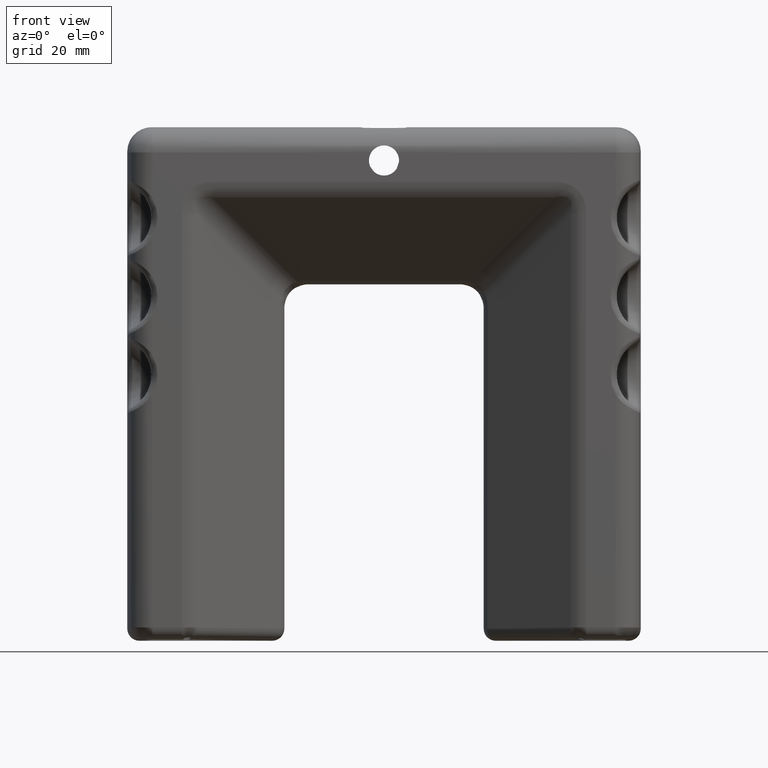
[diagram: clean part render]
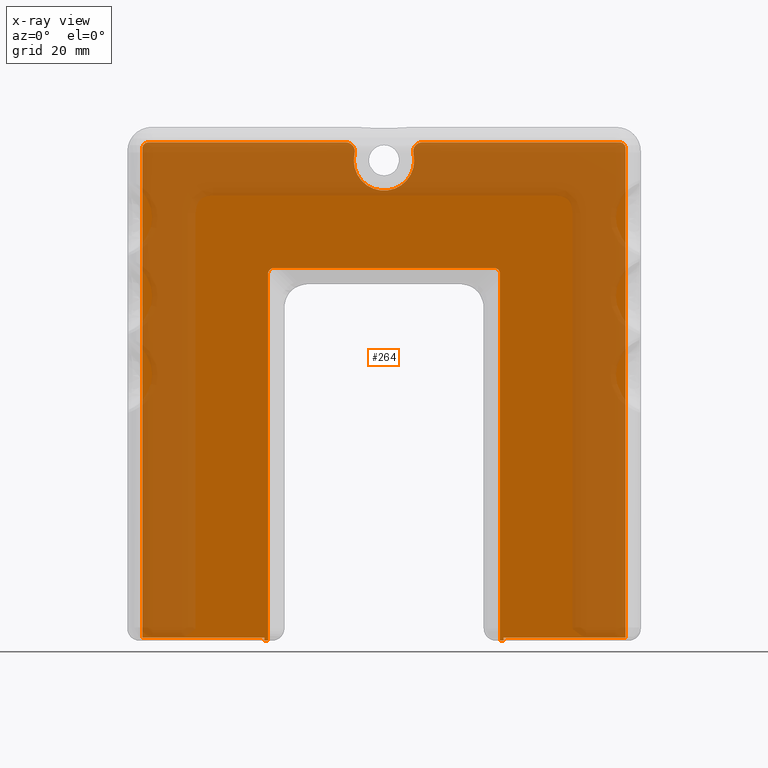
[diagram: x-ray — body ghosted, one internal face saturated and labeled with its STEP entity id]
A machine part, front view, then the same camera in x-ray: the body is ghosted and one INTERNAL B-rep face — a face not visible from any outside direction — is saturated and labeled: STEP entity #264.
In plain terms, the highlighted planar face has unit normal (0, 1, 0).
Its self-contained STEP definition (entity closure, byte-faithful):
#264=ADVANCED_FACE('',(#497),#496,.T.);
#496=PLANE('',#2439);
#497=FACE_OUTER_BOUND('',#2440,.T.);
#2436=CARTESIAN_POINT('',(-4.79999999999E+001,-1.00000000000E+000,3.17491272469E+001));
#2437=DIRECTION('',(-0.00000000000E+000,1.00000000000E+000,0.00000000000E+000));
#2438=DIRECTION('',(1.00000000000E+000,0.00000000000E+000,0.00000000000E+000));
#2439=AXIS2_PLACEMENT_3D('',#2436,#2437,#2438);
#2440=EDGE_LOOP('',(#7975,#7976,#7977,#7978,#7979,#7980,#7981,#7982,#7983,#7984,#7985,#7986,#7987,#7988,#7989,#7990,#7991,#7992,#7993,#7994));
#7975=ORIENTED_EDGE('',*,*,#8967,.T.);
#7976=ORIENTED_EDGE('',*,*,#8957,.F.);
#7977=ORIENTED_EDGE('',*,*,#8961,.F.);
#7978=ORIENTED_EDGE('',*,*,#8968,.T.);
#7979=ORIENTED_EDGE('',*,*,#8969,.T.);
#7980=ORIENTED_EDGE('',*,*,#8970,.T.);
#7981=ORIENTED_EDGE('',*,*,#8965,.F.);
#7982=ORIENTED_EDGE('',*,*,#8953,.F.);
#7983=ORIENTED_EDGE('',*,*,#8971,.T.);
#7984=ORIENTED_EDGE('',*,*,#8972,.T.);
#7985=ORIENTED_EDGE('',*,*,#8973,.F.);
#7986=ORIENTED_EDGE('',*,*,#8974,.T.);
#7987=ORIENTED_EDGE('',*,*,#8975,.F.);
#7988=ORIENTED_EDGE('',*,*,#8976,.T.);
#7989=ORIENTED_EDGE('',*,*,#8977,.T.);
#7990=ORIENTED_EDGE('',*,*,#8978,.T.);
#7991=ORIENTED_EDGE('',*,*,#8979,.F.);
#7992=ORIENTED_EDGE('',*,*,#8980,.T.);
#7993=ORIENTED_EDGE('',*,*,#8981,.F.);
#7994=ORIENTED_EDGE('',*,*,#8982,.T.);
#8953=EDGE_CURVE('',#9492,#9493,#9494,.T.);
#8957=EDGE_CURVE('',#9520,#9521,#9522,.T.);
#8961=EDGE_CURVE('',#9548,#9520,#9549,.T.);
#8965=EDGE_CURVE('',#9493,#9575,#9576,.T.);
#8967=EDGE_CURVE('',#9588,#9521,#9589,.T.);
#8968=EDGE_CURVE('',#9548,#9595,#9596,.T.);
#8969=EDGE_CURVE('',#9595,#9602,#9603,.T.);
#8970=EDGE_CURVE('',#9602,#9575,#9609,.T.);
#8971=EDGE_CURVE('',#9492,#9615,#9616,.T.);
#8972=EDGE_CURVE('',#9615,#9622,#9623,.T.);
#8973=EDGE_CURVE('',#9629,#9622,#9630,.T.);
#8974=EDGE_CURVE('',#9629,#9636,#9637,.T.);
#8975=EDGE_CURVE('',#9643,#9636,#9644,.T.);
#8976=EDGE_CURVE('',#9643,#9650,#9651,.T.);
#8977=EDGE_CURVE('',#9650,#9657,#9658,.T.);
#8978=EDGE_CURVE('',#9657,#9664,#9665,.T.);
#8979=EDGE_CURVE('',#9671,#9664,#9672,.T.);
#8980=EDGE_CURVE('',#9671,#9678,#9679,.T.);
#8981=EDGE_CURVE('',#9685,#9678,#9686,.T.);
#8982=EDGE_CURVE('',#9685,#9588,#9692,.T.);
#9492=VERTEX_POINT('',#13067);
#9493=VERTEX_POINT('',#13068);
#9494=CIRCLE('',#13072,1.00000000000E+000);
#9520=VERTEX_POINT('',#13085);
#9521=VERTEX_POINT('',#13086);
#9522=CIRCLE('',#13090,1.00000000000E+000);
#9548=VERTEX_POINT('',#13103);
#9549=LINE('',#13104,#13105);
#9575=VERTEX_POINT('',#13118);
#9576=LINE('',#13119,#13120);
#9588=VERTEX_POINT('',#13125);
#9589=LINE('',#13126,#13127);
#9595=VERTEX_POINT('',#13129);
#9596=CIRCLE('',#13133,1.50000000000E+000);
#9602=VERTEX_POINT('',#13134);
#9603=CIRCLE('',#13138,5.00000000000E+000);
#9609=CIRCLE('',#13142,1.50000000000E+000);
#9615=VERTEX_POINT('',#13143);
#9616=LINE('',#13144,#13145);
#9622=VERTEX_POINT('',#13147);
#9623=LINE('',#13148,#13149);
#9629=VERTEX_POINT('',#13151);
#9630=LINE('',#13152,#13153);
#9636=VERTEX_POINT('',#13155);
#9637=LINE('',#13156,#13157);
#9643=VERTEX_POINT('',#13159);
#9644=LINE('',#13160,#13161);
#9650=VERTEX_POINT('',#13163);
#9651=CIRCLE('',#13167,1.00000000000E+000);
#9657=VERTEX_POINT('',#13168);
#9658=LINE('',#13169,#13170);
#9664=VERTEX_POINT('',#13172);
#9665=CIRCLE('',#13176,1.00000000000E+000);
#9671=VERTEX_POINT('',#13177);
#9672=LINE('',#13178,#13179);
#9678=VERTEX_POINT('',#13181);
#9679=LINE('',#13182,#13183);
#9685=VERTEX_POINT('',#13185);
#9686=LINE('',#13186,#13187);
#9692=LINE('',#13189,#13190);
#13067=CARTESIAN_POINT('',(4.00000000000E+001,-1.00000000000E+000,2.25000000001E+001));
#13068=CARTESIAN_POINT('',(3.90000000000E+001,-1.00000000000E+000,2.35000000001E+001));
#13069=CARTESIAN_POINT('',(3.90000000000E+001,-1.00000000000E+000,2.25000000001E+001));
#13070=DIRECTION('',(0.00000000000E+000,-1.00000000000E+000,0.00000000000E+000));
#13071=DIRECTION('',(-1.00000000000E+000,-0.00000000000E+000,-0.00000000000E+000));
#13072=AXIS2_PLACEMENT_3D('',#13069,#13070,#13071);
#13085=CARTESIAN_POINT('',(-3.89999999999E+001,-1.00000000000E+000,2.35000000001E+001));
#13086=CARTESIAN_POINT('',(-3.99999999999E+001,-1.00000000000E+000,2.25000000001E+001));
#13087=CARTESIAN_POINT('',(-3.89999999999E+001,-1.00000000000E+000,2.25000000001E+001));
#13088=DIRECTION('',(0.00000000000E+000,-1.00000000000E+000,0.00000000000E+000));
#13089=DIRECTION('',(1.98951966013E-013,-0.00000000000E+000,-1.00000000000E+000));
#13090=AXIS2_PLACEMENT_3D('',#13087,#13088,#13089);
#13103=CARTESIAN_POINT('',(-6.32455532032E+000,-1.00000000000E+000,2.35000000001E+001));
#13104=CARTESIAN_POINT('',(-6.32455532032E+000,-1.00000000000E+000,2.35000000001E+001));
#13105=VECTOR('',#13106,3.26754446796E+001);
#13106=DIRECTION('',(-1.00000000000E+000,0.00000000000E+000,-1.98862276619E-013));
#13118=CARTESIAN_POINT('',(6.32455532032E+000,-1.00000000000E+000,2.35000000001E+001));
#13119=CARTESIAN_POINT('',(3.90000000000E+001,-1.00000000000E+000,2.35000000001E+001));
#13120=VECTOR('',#13121,3.26754446797E+001);
#13121=DIRECTION('',(-1.00000000000E+000,0.00000000000E+000,-2.02015369031E-013));
#13125=CARTESIAN_POINT('',(-3.99999999999E+001,-1.00000000000E+000,-5.85000000000E+001));
#13126=CARTESIAN_POINT('',(-3.99999999999E+001,-1.00000000000E+000,-5.85000000000E+001));
#13127=VECTOR('',#13128,8.10000000001E+001);
#13128=DIRECTION('',(-5.00011554794E-015,0.00000000000E+000,1.00000000000E+000));
#13129=CARTESIAN_POINT('',(-4.86504255409E+000,-1.00000000000E+000,2.16538461539E+001));
#13130=CARTESIAN_POINT('',(-6.32455532032E+000,-1.00000000000E+000,2.20000000001E+001));
#13131=DIRECTION('',(0.00000000000E+000,1.00000000000E+000,0.00000000000E+000));
#13132=DIRECTION('',(3.03164900591E-013,-0.00000000000E+000,-1.00000000000E+000));
#13133=AXIS2_PLACEMENT_3D('',#13130,#13131,#13132);
#13134=CARTESIAN_POINT('',(4.86504255409E+000,-1.00000000000E+000,2.16538461539E+001));
#13135=CARTESIAN_POINT('',(0.00000000000E+000,-1.00000000000E+000,2.05000000000E+001));
#13136=DIRECTION('',(0.00000000000E+000,-1.00000000000E+000,0.00000000000E+000));
#13137=DIRECTION('',(-9.73008510818E-001,0.00000000000E+000,2.30769230783E-001));
#13138=AXIS2_PLACEMENT_3D('',#13135,#13136,#13137);
#13139=CARTESIAN_POINT('',(6.32455532032E+000,-1.00000000000E+000,2.20000000001E+001));
#13140=DIRECTION('',(0.00000000000E+000,1.00000000000E+000,0.00000000000E+000));
#13141=DIRECTION('',(9.73008510818E-001,-0.00000000000E+000,2.30769230783E-001));
#13142=AXIS2_PLACEMENT_3D('',#13139,#13140,#13141);
#13143=CARTESIAN_POINT('',(3.99999999999E+001,-1.00000000000E+000,-5.85000000000E+001));
#13144=CARTESIAN_POINT('',(3.99999999999E+001,-1.00000000000E+000,2.25000000001E+001));
#13145=VECTOR('',#13146,8.10000000001E+001);
#13146=DIRECTION('',(0.00000000000E+000,0.00000000000E+000,-1.00000000000E+000));
#13147=CARTESIAN_POINT('',(1.97942169855E+001,-1.00000000000E+000,-5.85000000000E+001));
#13148=CARTESIAN_POINT('',(3.99999999999E+001,-1.00000000000E+000,-5.85000000000E+001));
#13149=VECTOR('',#13150,2.02057830145E+001);
#13150=DIRECTION('',(-1.00000000000E+000,0.00000000000E+000,0.00000000000E+000));
#13151=CARTESIAN_POINT('',(1.97942169854E+001,-9.99999999991E-001,-5.89912724674E+001));
#13152=CARTESIAN_POINT('',(1.97942169855E+001,-1.00000000000E+000,-5.89912724674E+001));
#13153=VECTOR('',#13154,4.91272467447E-001);
#13154=DIRECTION('',(0.00000000000E+000,0.00000000000E+000,1.00000000000E+000));
#13155=CARTESIAN_POINT('',(1.91980631393E+001,-1.00000000000E+000,-5.89912724674E+001));
#13156=CARTESIAN_POINT('',(1.97942169855E+001,-1.00000000000E+000,-5.89912724674E+001));
#13157=VECTOR('',#13158,5.96153846175E-001);
#13158=DIRECTION('',(-1.00000000000E+000,0.00000000000E+000,0.00000000000E+000));
#13159=CARTESIAN_POINT('',(1.91980631393E+001,-1.00000000000E+000,1.69806313922E+000));
#13160=CARTESIAN_POINT('',(1.91980631393E+001,-1.00000000000E+000,1.69806313922E+000));
#13161=VECTOR('',#13162,6.06893356067E+001);
#13162=DIRECTION('',(0.00000000000E+000,0.00000000000E+000,-1.00000000000E+000));
#13163=CARTESIAN_POINT('',(1.81980631393E+001,-1.00000000000E+000,2.69806313922E+000));
#13164=CARTESIAN_POINT('',(1.81980631393E+001,-1.00000000000E+000,1.69806313922E+000));
#13165=DIRECTION('',(0.00000000000E+000,-1.00000000000E+000,0.00000000000E+000));
#13166=DIRECTION('',(-1.00000000000E+000,-0.00000000000E+000,2.66453525910E-015));
#13167=AXIS2_PLACEMENT_3D('',#13164,#13165,#13166);
#13168=CARTESIAN_POINT('',(-1.81980631393E+001,-1.00000000000E+000,2.69806313922E+000));
#13169=CARTESIAN_POINT('',(1.81980631393E+001,-1.00000000000E+000,2.69806313922E+000));
#13170=VECTOR('',#13171,3.63961262786E+001);
#13171=DIRECTION('',(-1.00000000000E+000,0.00000000000E+000,0.00000000000E+000));
#13172=CARTESIAN_POINT('',(-1.91980631393E+001,-1.00000000000E+000,1.69806313922E+000));
#13173=CARTESIAN_POINT('',(-1.81980631393E+001,-1.00000000000E+000,1.69806313922E+000));
#13174=DIRECTION('',(0.00000000000E+000,-1.00000000000E+000,0.00000000000E+000));
#13175=DIRECTION('',(-0.00000000000E+000,-0.00000000000E+000,-1.00000000000E+000));
#13176=AXIS2_PLACEMENT_3D('',#13173,#13174,#13175);
#13177=CARTESIAN_POINT('',(-1.91980631393E+001,-1.00000000000E+000,-5.89912724674E+001));
#13178=CARTESIAN_POINT('',(-1.91980631393E+001,-1.00000000000E+000,-5.89912724674E+001));
#13179=VECTOR('',#13180,6.06893356067E+001);
#13180=DIRECTION('',(-3.27820306523E-015,0.00000000000E+000,1.00000000000E+000));
#13181=CARTESIAN_POINT('',(-1.97942169854E+001,-1.00000000000E+000,-5.89912724674E+001));
#13182=CARTESIAN_POINT('',(-1.91980631393E+001,-1.00000000000E+000,-5.89912724674E+001));
#13183=VECTOR('',#13184,5.96153846089E-001);
#13184=DIRECTION('',(-1.00000000000E+000,0.00000000000E+000,0.00000000000E+000));
#13185=CARTESIAN_POINT('',(-1.97942169854E+001,-1.00000000000E+000,-5.85000000000E+001));
#13186=CARTESIAN_POINT('',(-1.97942169854E+001,-1.00000000000E+000,-5.85000000000E+001));
#13187=VECTOR('',#13188,4.91272467447E-001);
#13188=DIRECTION('',(0.00000000000E+000,0.00000000000E+000,-1.00000000000E+000));
#13189=CARTESIAN_POINT('',(-1.97942169854E+001,-1.00000000000E+000,-5.85000000000E+001));
#13190=VECTOR('',#13191,2.02057830146E+001);
#13191=DIRECTION('',(-1.00000000000E+000,0.00000000000E+000,0.00000000000E+000));